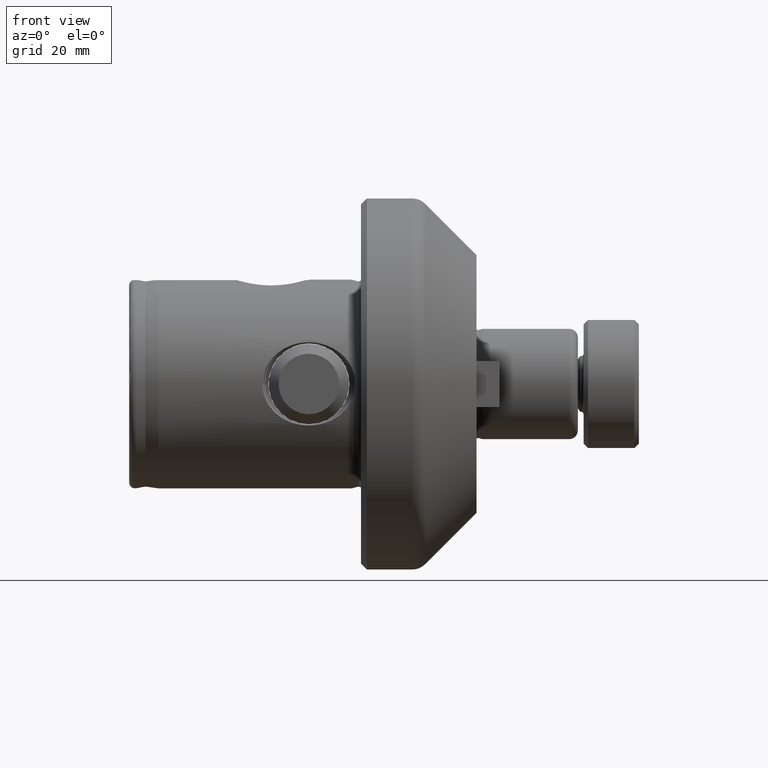
[diagram: clean part render]
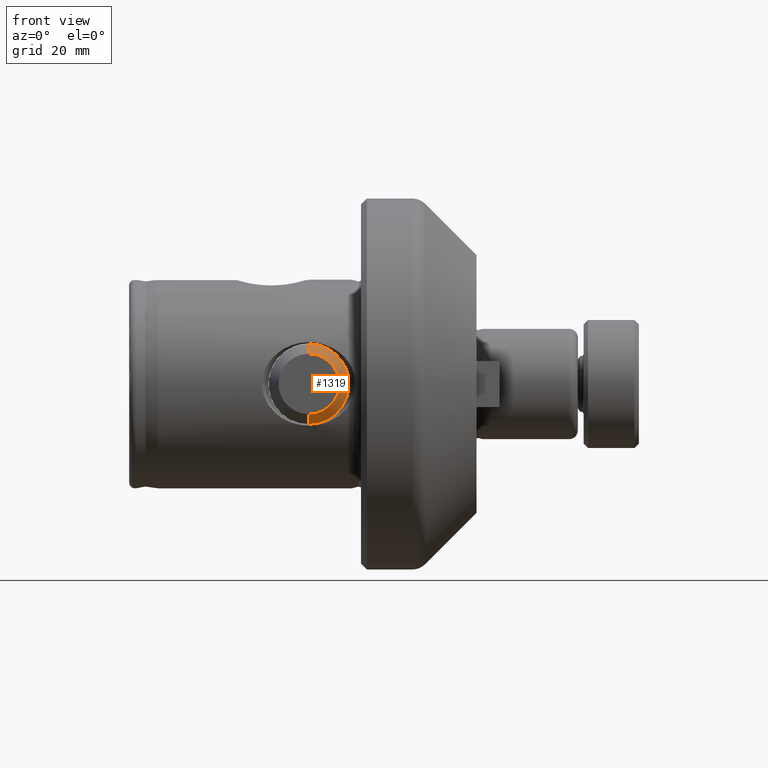
[diagram: same view with one face highlighted and labeled with its STEP entity id]
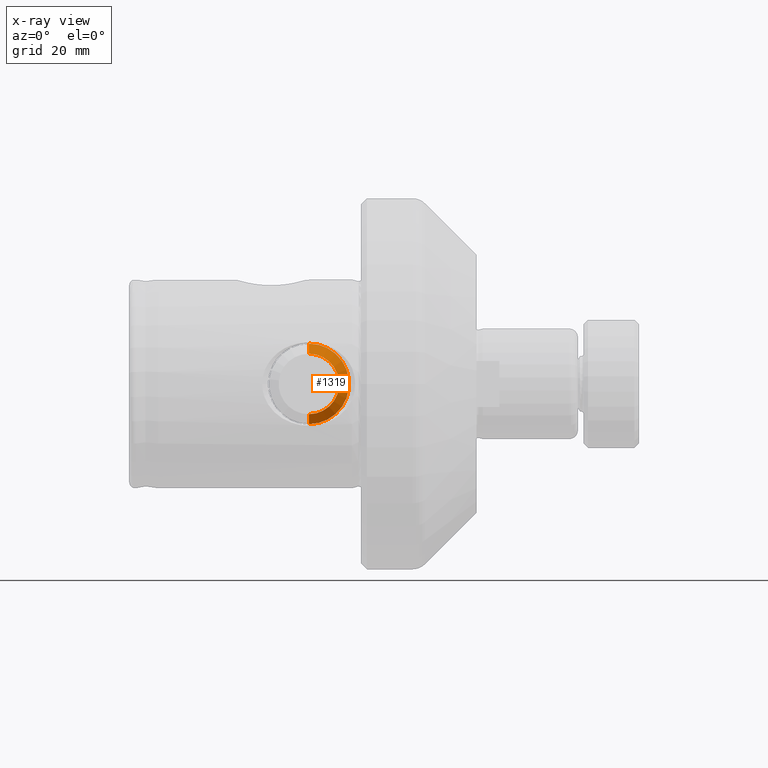
[diagram: x-ray of the same camera — body ghosted, the highlighted face saturated]
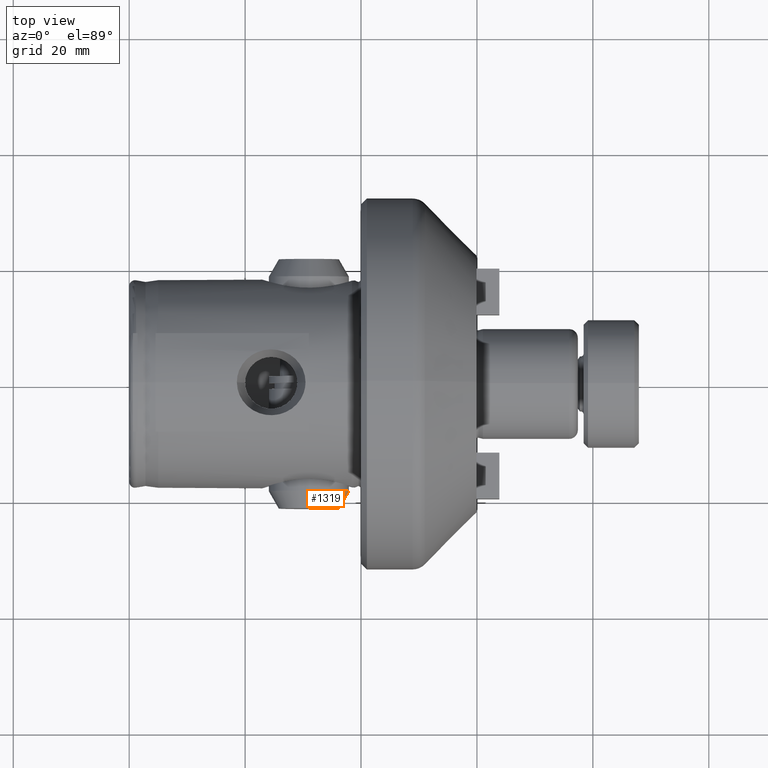
[diagram: same view with one face highlighted and labeled with its STEP entity id]
A machine part, front view. The second image highlights one B-rep face of the part: STEP entity #1319.
The next image is the same camera in x-ray: the body ghosted, the highlighted face saturated — about 0% of this face is hidden behind the body in this view.
A second angle (top view) of the same face is appended — the face is thin or edge-on in the first view.
In plain terms, the highlighted conical surface has half-angle 30 deg.
Its self-contained STEP definition (entity closure, byte-faithful):
#486 = CARTESIAN_POINT ( 'NONE',  ( 39.99999999999997200, -6.553091402849985500E-015, 6.950000000000041900 ) ) ;
#514 = EDGE_CURVE ( 'NONE', #2647, #6587, #2949, .T. ) ;
#953 = CIRCLE ( 'NONE', #7558, 6.950000000000056100 ) ;
#973 = VERTEX_POINT ( 'NONE', #4106 ) ;
#1091 = EDGE_CURVE ( 'NONE', #6587, #973, #1358, .T. ) ;
#1319 = ADVANCED_FACE ( 'NONE', ( #3130 ), #3318, .T. ) ;
#1358 = LINE ( 'NONE', #5362, #6376 ) ;
#1452 = VERTEX_POINT ( 'NONE', #486 ) ;
#1486 = AXIS2_PLACEMENT_3D ( 'NONE', #7059, #5962, #5911 ) ;
#1580 = CARTESIAN_POINT ( 'NONE',  ( 39.99999999999997200, 0.0000000000000000000, -1.387778780781445700E-014 ) ) ;
#1786 = DIRECTION ( 'NONE',  ( -0.8660254037844382600, 3.347676434173900600E-017, -0.5000000000000006700 ) ) ;
#2142 = DIRECTION ( 'NONE',  ( 0.0000000000000000000, -9.436895709313822700E-016, -1.000000000000000000 ) ) ;
#2188 = CARTESIAN_POINT ( 'NONE',  ( 43.00000000000000000, -6.601165470009578300E-015, 5.217949192431107400 ) ) ;
#2410 = CARTESIAN_POINT ( 'NONE',  ( 43.00000000000000000, -6.531550336269958100E-015, -5.217949192431135000 ) ) ;
#2647 = VERTEX_POINT ( 'NONE', #2188 ) ;
#2949 = CIRCLE ( 'NONE', #1486, 5.217949192431162500 ) ;
#3130 = FACE_OUTER_BOUND ( 'NONE', #4655, .T. ) ;
#3318 = CONICAL_SURFACE ( 'NONE', #6789, 5.217949192431162500, 0.5235987755982960400 ) ;
#3345 = DIRECTION ( 'NONE',  ( -1.000000000000000000, 7.472827971259615800E-033, 5.977619408580840300E-032 ) ) ;
#3780 = ORIENTED_EDGE ( 'NONE', *, *, #4227, .F. ) ;
#3875 = DIRECTION ( 'NONE',  ( -0.8660254037844382600, 2.775557561562873200E-017, 0.5000000000000006700 ) ) ;
#3915 = DIRECTION ( 'NONE',  ( 0.0000000000000000000, 5.551115123125743900E-017, 1.000000000000000000 ) ) ;
#3959 = ORIENTED_EDGE ( 'NONE', *, *, #1091, .F. ) ;
#4106 = CARTESIAN_POINT ( 'NONE',  ( 39.99999999999997200, -6.473566879557052800E-015, -6.950000000000069500 ) ) ;
#4227 = EDGE_CURVE ( 'NONE', #973, #1452, #953, .T. ) ;
#4539 = ORIENTED_EDGE ( 'NONE', *, *, #514, .F. ) ;
#4655 = EDGE_LOOP ( 'NONE', ( #3959, #4539, #7156, #3780 ) ) ;
#4704 = LINE ( 'NONE', #6313, #6017 ) ;
#5362 = CARTESIAN_POINT ( 'NONE',  ( 43.00000000000000000, -6.589533792982857900E-015, -5.217949192431176700 ) ) ;
#5911 = DIRECTION ( 'NONE',  ( 0.0000000000000000000, -5.551115123125743900E-017, -1.000000000000000000 ) ) ;
#5962 = DIRECTION ( 'NONE',  ( 1.000000000000000000, -8.378013236344267000E-032, -6.171883090740398700E-032 ) ) ;
#6017 = VECTOR ( 'NONE', #3875, 1000.000000000000100 ) ;
#6275 = CARTESIAN_POINT ( 'NONE',  ( 43.00000000000000000, -6.938893903907228400E-015, -1.387778780781445700E-014 ) ) ;
#6313 = CARTESIAN_POINT ( 'NONE',  ( 43.00000000000000000, -6.649239537169164800E-015, 5.217949192431148300 ) ) ;
#6376 = VECTOR ( 'NONE', #1786, 1000.000000000000100 ) ;
#6587 = VERTEX_POINT ( 'NONE', #2410 ) ;
#6789 = AXIS2_PLACEMENT_3D ( 'NONE', #6275, #7441, #3915 ) ;
#6867 = EDGE_CURVE ( 'NONE', #2647, #1452, #4704, .T. ) ;
#7059 = CARTESIAN_POINT ( 'NONE',  ( 43.00000000000000000, -6.938893903907228400E-015, -1.387778780781445700E-014 ) ) ;
#7156 = ORIENTED_EDGE ( 'NONE', *, *, #6867, .T. ) ;
#7441 = DIRECTION ( 'NONE',  ( -1.000000000000000000, 7.472827971259615800E-033, 5.977619408580840300E-032 ) ) ;
#7558 = AXIS2_PLACEMENT_3D ( 'NONE', #1580, #3345, #2142 ) ;